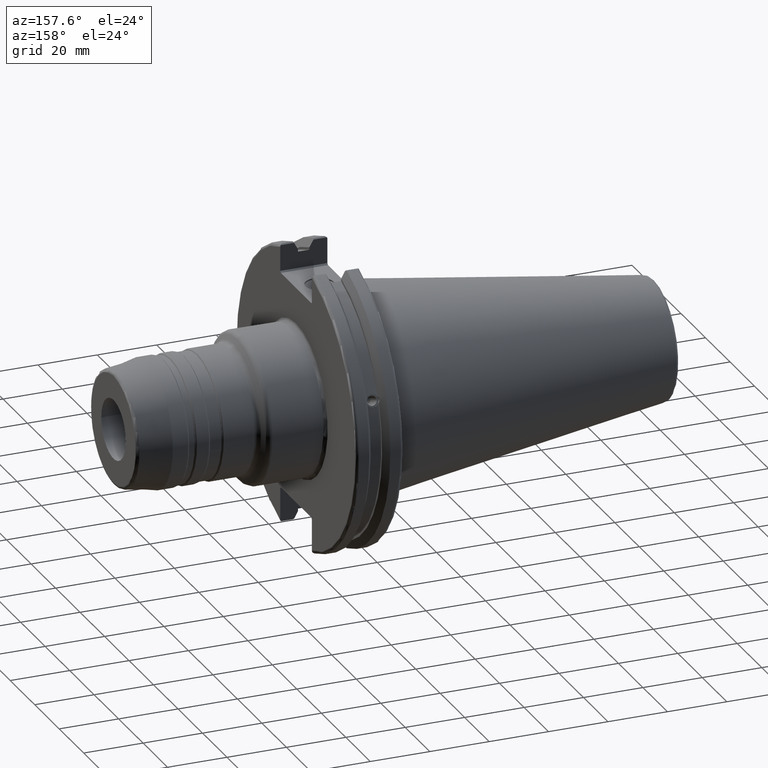
[diagram: clean part render]
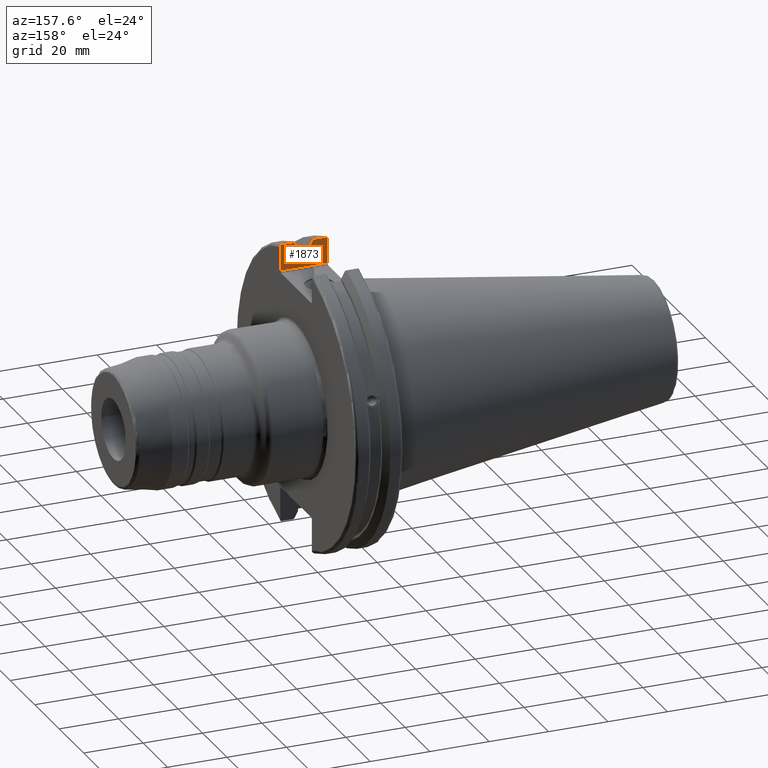
[diagram: same view with one face highlighted and labeled with its STEP entity id]
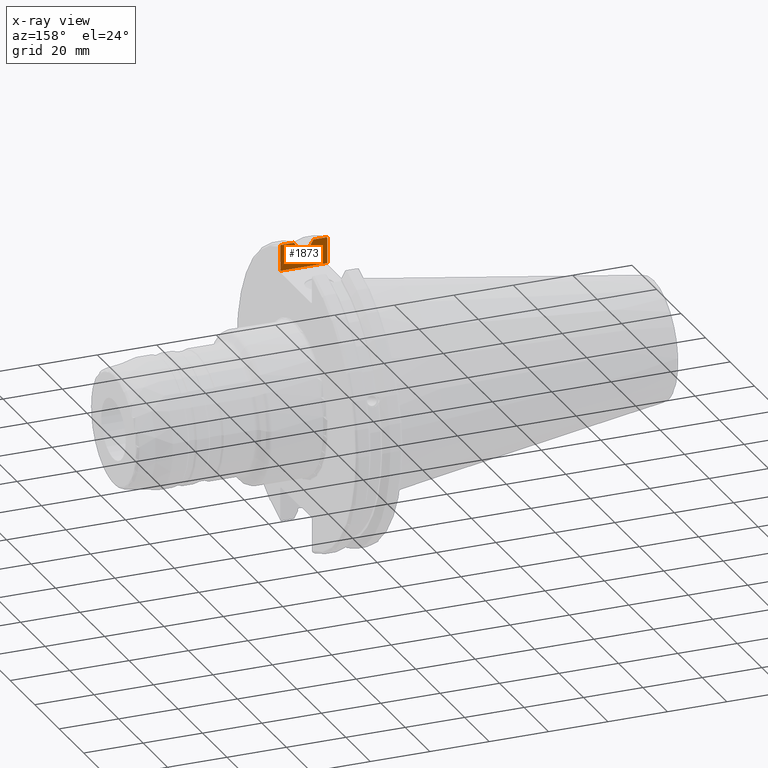
[diagram: x-ray of the same camera — body ghosted, the highlighted face saturated]
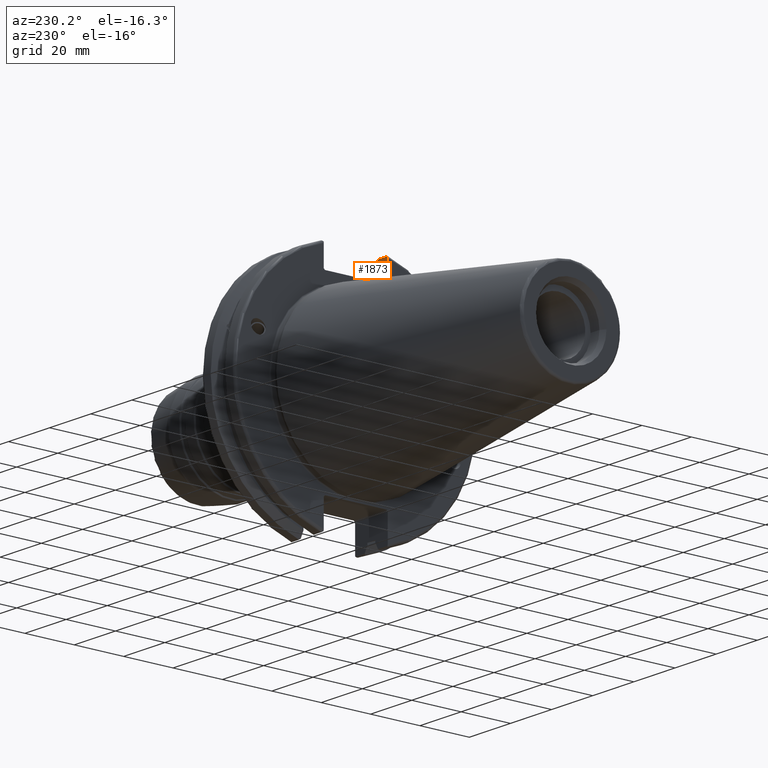
[diagram: same view with one face highlighted and labeled with its STEP entity id]
A machine part, auxiliary view. The second image highlights one B-rep face of the part: STEP entity #1873.
The next image is the same camera in x-ray: the body ghosted, the highlighted face saturated — about 0% of this face is hidden behind the body in this view.
A second angle (auxiliary view) of the same face is appended — the face is thin or edge-on in the first view.
In plain terms, the highlighted planar face has unit normal (-0, -1, 0).
Its self-contained STEP definition (entity closure, byte-faithful):
#18=(
BOUNDED_CURVE()
B_SPLINE_CURVE(2,(#3236,#3237,#3238),.UNSPECIFIED.,.F.,.F.)
B_SPLINE_CURVE_WITH_KNOTS((3,3),(0.0558332664513841,0.331657177124504),
 .UNSPECIFIED.)
CURVE()
GEOMETRIC_REPRESENTATION_ITEM()
RATIONAL_B_SPLINE_CURVE((1.0001287363678,1.00038235574463,1.))
REPRESENTATION_ITEM('')
);
#24=(
BOUNDED_CURVE()
B_SPLINE_CURVE(2,(#3625,#3626,#3627),.UNSPECIFIED.,.F.,.F.)
B_SPLINE_CURVE_WITH_KNOTS((3,3),(0.,0.275823910673799),.UNSPECIFIED.)
CURVE()
GEOMETRIC_REPRESENTATION_ITEM()
RATIONAL_B_SPLINE_CURVE((1.,1.00038235574547,1.00012873636808))
REPRESENTATION_ITEM('')
);
#48=PLANE('',#2111);
#155=B_SPLINE_CURVE_WITH_KNOTS('',3,(#3588,#3589,#3590,#3591,#3592,#3593),
 .UNSPECIFIED.,.F.,.F.,(4,2,4),(0.452859694247731,0.491383469061936,0.506034728678978),
 .UNSPECIFIED.);
#158=B_SPLINE_CURVE_WITH_KNOTS('',3,(#3616,#3617,#3618,#3619,#3620,#3621),
 .UNSPECIFIED.,.F.,.F.,(4,2,4),(0.0976892167532858,0.112000071948292,0.150881870548587),
 .UNSPECIFIED.);
#232=FACE_OUTER_BOUND('',#355,.T.);
#355=EDGE_LOOP('',(#1584,#1585,#1586,#1587,#1588,#1589,#1590,#1591,#1592,
#1593,#1594,#1595));
#415=LINE('',#2984,#517);
#452=LINE('',#3498,#554);
#470=LINE('',#3614,#572);
#471=LINE('',#3623,#573);
#472=LINE('',#3629,#574);
#473=LINE('',#3631,#575);
#474=LINE('',#3632,#576);
#475=LINE('',#3633,#577);
#517=VECTOR('',#2366,10.);
#554=VECTOR('',#2561,10.);
#572=VECTOR('',#2599,10.);
#573=VECTOR('',#2600,10.);
#574=VECTOR('',#2601,10.);
#575=VECTOR('',#2602,10.);
#576=VECTOR('',#2603,10.);
#577=VECTOR('',#2604,10.);
#787=VERTEX_POINT('',#2981);
#788=VERTEX_POINT('',#2983);
#827=VERTEX_POINT('',#3231);
#828=VERTEX_POINT('',#3235);
#866=VERTEX_POINT('',#3494);
#868=VERTEX_POINT('',#3497);
#889=VERTEX_POINT('',#3587);
#892=VERTEX_POINT('',#3615);
#893=VERTEX_POINT('',#3622);
#894=VERTEX_POINT('',#3624);
#895=VERTEX_POINT('',#3628);
#896=VERTEX_POINT('',#3630);
#1003=EDGE_CURVE('',#787,#788,#415,.T.);
#1054=EDGE_CURVE('',#827,#828,#18,.T.);
#1109=EDGE_CURVE('',#866,#868,#452,.T.);
#1137=EDGE_CURVE('',#788,#889,#155,.T.);
#1141=EDGE_CURVE('',#868,#787,#470,.T.);
#1142=EDGE_CURVE('',#892,#866,#158,.T.);
#1143=EDGE_CURVE('',#893,#892,#471,.T.);
#1144=EDGE_CURVE('',#894,#893,#24,.T.);
#1145=EDGE_CURVE('',#895,#894,#472,.T.);
#1146=EDGE_CURVE('',#896,#895,#473,.T.);
#1147=EDGE_CURVE('',#828,#896,#474,.T.);
#1148=EDGE_CURVE('',#889,#827,#475,.T.);
#1584=ORIENTED_EDGE('',*,*,#1137,.F.);
#1585=ORIENTED_EDGE('',*,*,#1003,.F.);
#1586=ORIENTED_EDGE('',*,*,#1141,.F.);
#1587=ORIENTED_EDGE('',*,*,#1109,.F.);
#1588=ORIENTED_EDGE('',*,*,#1142,.F.);
#1589=ORIENTED_EDGE('',*,*,#1143,.F.);
#1590=ORIENTED_EDGE('',*,*,#1144,.F.);
#1591=ORIENTED_EDGE('',*,*,#1145,.F.);
#1592=ORIENTED_EDGE('',*,*,#1146,.F.);
#1593=ORIENTED_EDGE('',*,*,#1147,.F.);
#1594=ORIENTED_EDGE('',*,*,#1054,.F.);
#1595=ORIENTED_EDGE('',*,*,#1148,.F.);
#1873=ADVANCED_FACE('',(#232),#48,.F.);
#2111=AXIS2_PLACEMENT_3D('',#3613,#2597,#2598);
#2366=DIRECTION('',(0.,0.,1.));
#2561=DIRECTION('',(0.,0.,-1.));
#2597=DIRECTION('center_axis',(-1.31581988103722E-16,-1.,0.));
#2598=DIRECTION('ref_axis',(1.,-1.31581988103722E-16,0.));
#2599=DIRECTION('',(1.,-1.31581988103722E-16,0.));
#2600=DIRECTION('',(-1.,1.31581988103722E-16,0.));
#2601=DIRECTION('',(0.,0.,1.));
#2602=DIRECTION('',(-1.,0.,0.));
#2603=DIRECTION('',(0.,0.,-1.));
#2604=DIRECTION('',(-1.,1.31581988103722E-16,0.));
#2981=CARTESIAN_POINT('',(19.05,-12.95,38.219));
#2983=CARTESIAN_POINT('',(19.05,-12.95,46.4407434937254));
#2984=CARTESIAN_POINT('',(19.05,-12.95,18.8595));
#3231=CARTESIAN_POINT('',(14.3818103943757,-12.95,46.9780755322918));
#3235=CARTESIAN_POINT('',(13.0491,-12.95,44.5791147973604));
#3236=CARTESIAN_POINT('Ctrl Pts',(14.3818103943757,-12.95,46.9780755322917));
#3237=CARTESIAN_POINT('Ctrl Pts',(13.6979955094656,-12.95,45.7494966802583));
#3238=CARTESIAN_POINT('Ctrl Pts',(13.0491,-12.95,44.5791147973604));
#3494=CARTESIAN_POINT('',(3.175,-12.95,46.4407434937254));
#3497=CARTESIAN_POINT('',(3.175,-12.95,38.219));
#3498=CARTESIAN_POINT('',(3.175,-12.95,18.8595));
#3587=CARTESIAN_POINT('',(18.9055020570566,-12.95,46.9780755322918));
#3588=CARTESIAN_POINT('Ctrl Pts',(19.05,-12.95,46.4407434937254));
#3589=CARTESIAN_POINT('Ctrl Pts',(19.05,-12.95,46.5691560764394));
#3590=CARTESIAN_POINT('Ctrl Pts',(19.0209992543299,-12.95,46.7204975987179));
#3591=CARTESIAN_POINT('Ctrl Pts',(18.9549831813775,-12.95,46.8849952622217));
#3592=CARTESIAN_POINT('Ctrl Pts',(18.9322353702005,-12.95,46.9322596399785));
#3593=CARTESIAN_POINT('Ctrl Pts',(18.9055020570566,-12.95,46.9780755322918));
#3613=CARTESIAN_POINT('Origin',(3.175,-12.95,37.719));
#3614=CARTESIAN_POINT('',(10.63125,-12.95,38.219));
#3615=CARTESIAN_POINT('',(3.31949794294344,-12.95,46.9780755322918));
#3616=CARTESIAN_POINT('Ctrl Pts',(3.31949794294344,-12.95,46.9780755322918));
#3617=CARTESIAN_POINT('Ctrl Pts',(3.29341556483839,-12.95,46.9333752207329));
#3618=CARTESIAN_POINT('Ctrl Pts',(3.27115672912336,-12.95,46.887363294568));
#3619=CARTESIAN_POINT('Ctrl Pts',(3.20453530071253,-12.95,46.7230464903732));
#3620=CARTESIAN_POINT('Ctrl Pts',(3.175,-12.95,46.5703494890597));
#3621=CARTESIAN_POINT('Ctrl Pts',(3.175,-12.95,46.4407434937254));
#3622=CARTESIAN_POINT('',(7.88638960562424,-12.95,46.9780755322918));
#3623=CARTESIAN_POINT('',(5.39149548297564,-12.95,46.9780755322918));
#3624=CARTESIAN_POINT('',(9.2191,-12.95,44.5791147973604));
#3625=CARTESIAN_POINT('Ctrl Pts',(9.2191,-12.95,44.5791147973604));
#3626=CARTESIAN_POINT('Ctrl Pts',(8.57020449054213,-12.95,45.7494966802443));
#3627=CARTESIAN_POINT('Ctrl Pts',(7.88638960562424,-12.95,46.9780755322918));
#3628=CARTESIAN_POINT('',(9.2191,-12.95,43.7678716897452));
#3629=CARTESIAN_POINT('',(9.2191,-12.95,18.8595));
#3630=CARTESIAN_POINT('',(13.0491,-12.95,43.7678716897452));
#3631=CARTESIAN_POINT('',(11.1341,-12.95,43.7678716897452));
#3632=CARTESIAN_POINT('',(13.0491,-12.95,18.8595));
#3633=CARTESIAN_POINT('',(16.8551045170244,-12.95,46.9780755322918));